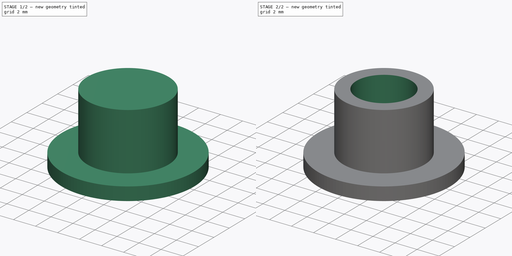
[diagram: build sequence overview — one tinted view per stage of 2, left to right]
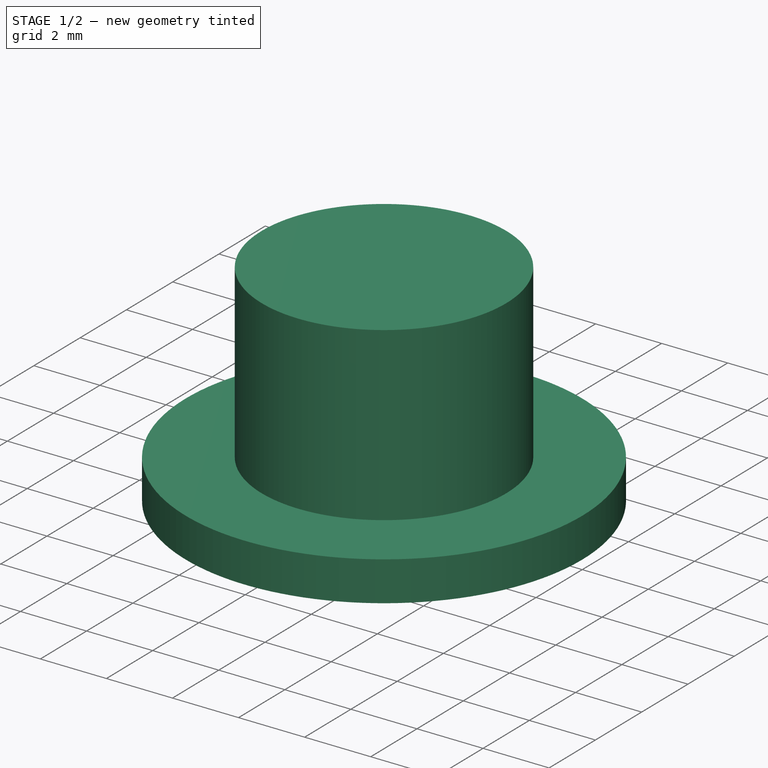
[diagram: stage 1 of 2 — iso view after this stage's code; geometry added in this stage tinted green]
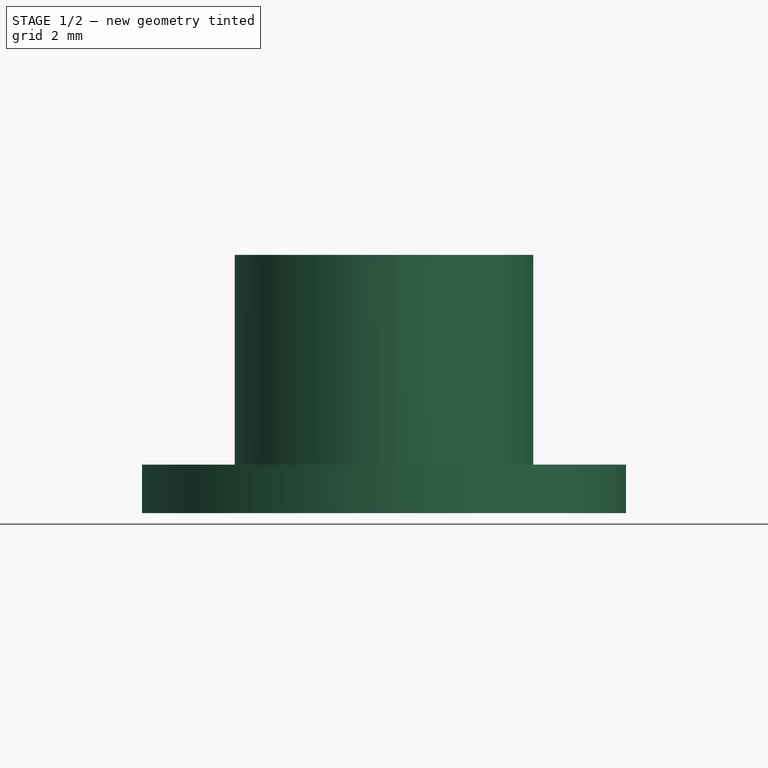
[diagram: stage 1 of 2 — front view after this stage's code; geometry added in this stage tinted green]
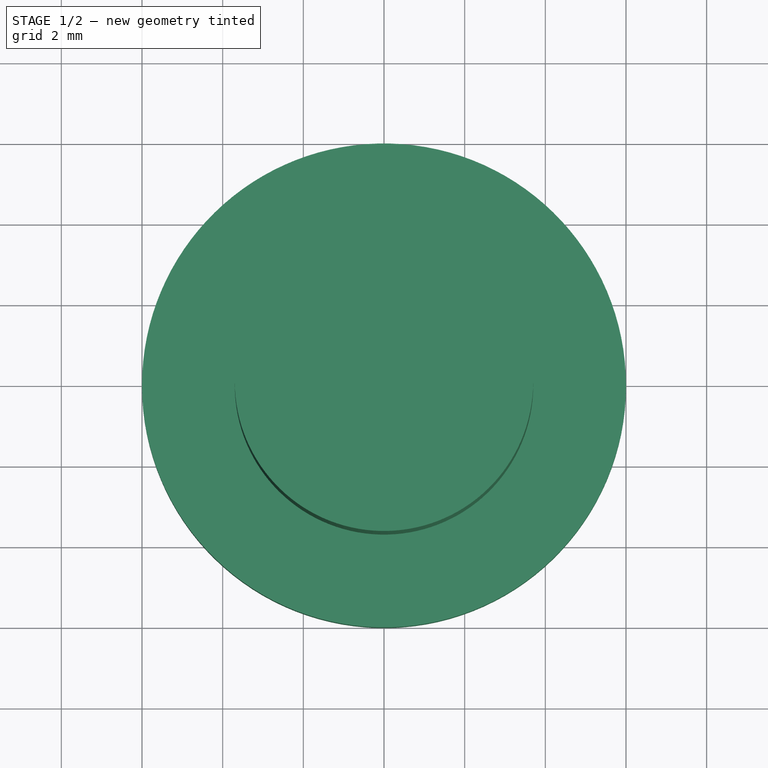
[diagram: stage 1 of 2 — top view after this stage's code; geometry added in this stage tinted green]
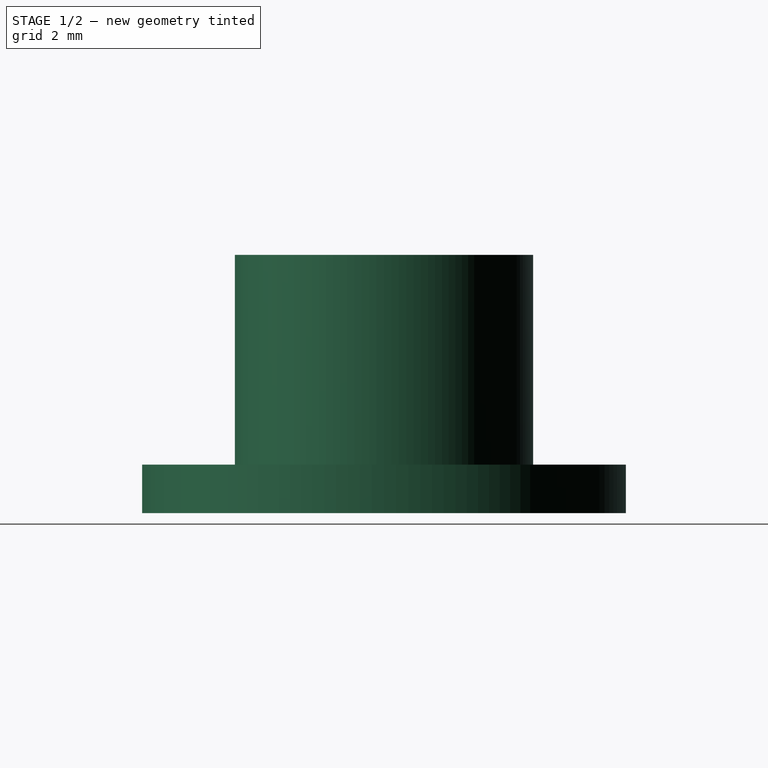
[diagram: stage 1 of 2 — right view after this stage's code; geometry added in this stage tinted green]
FCSTD DOCUMENT  (FreeCAD 0.20R29603 (Git))
Label: SG90_PaintingCap
License: All rights reserved
LicenseURL: http://en.wikipedia.org/wiki/All_rights_reserved
objects: Sketcher::SketchObject×3, PartDesign::Pad×2, PartDesign::Pocket×1, PartDesign::Body×1
note: 10 computed .brp shape members not serialized (recipe doc carries the construction recipe); baked Part::Feature solids carry a one-line shape summary decoded from their .brp

FEATURE [Sketcher::SketchObject] Sketch
  FullyConstrained = true
  MapMode = 5
  Support = -> [XY_Plane]
  sketch-geometry (1):
    g0: Circle CenterX=0 CenterY=0 CenterZ=0 NormalX=0 NormalY=0 NormalZ=1 AngleXU=0 Radius=6
  constraints (2):
    c: Coincident(g0,g-1)
    c: Diameter(g0) = 12
FEATURE [PartDesign::Pad] Pad
  Direction = (0,0,1)
  Length = 1.2
  Length2 = 10
  Profile = -> Sketch
  ReferenceAxis = -> Sketch [N_Axis]
  Type = 0
FEATURE [Sketcher::SketchObject] Sketch001
  FullyConstrained = true
  MapMode = 5
  Placement = pos=(0,0,1.2) rot=(0,0,1;0rad)
  Support = -> [Pad]
  sketch-geometry (1):
    g0: Circle CenterX=0 CenterY=0 CenterZ=0 NormalX=0 NormalY=0 NormalZ=1 AngleXU=0 Radius=3.7
  constraints (2):
    c: Coincident(g0,g-1)
    c: Diameter(g0) = 7.4
FEATURE [PartDesign::Pad] Pad001
  BaseFeature = -> Pad
  Direction = (0,0,1)
  Length = 5.2
  Length2 = 10
  Profile = -> Sketch001
  ReferenceAxis = -> Sketch001 [N_Axis]
  Type = 0
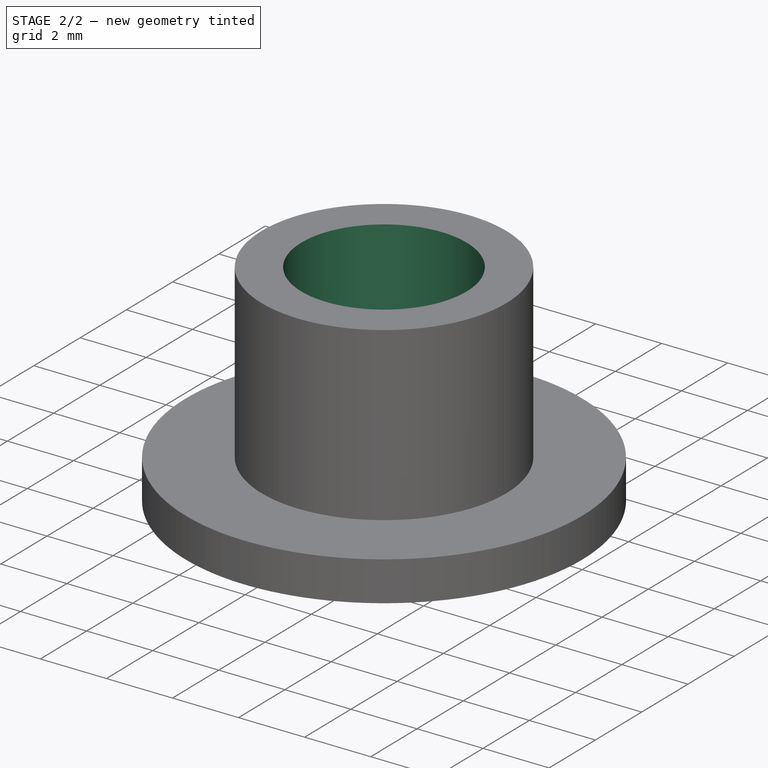
[diagram: stage 2 of 2 — iso view after this stage's code; geometry added in this stage tinted green]
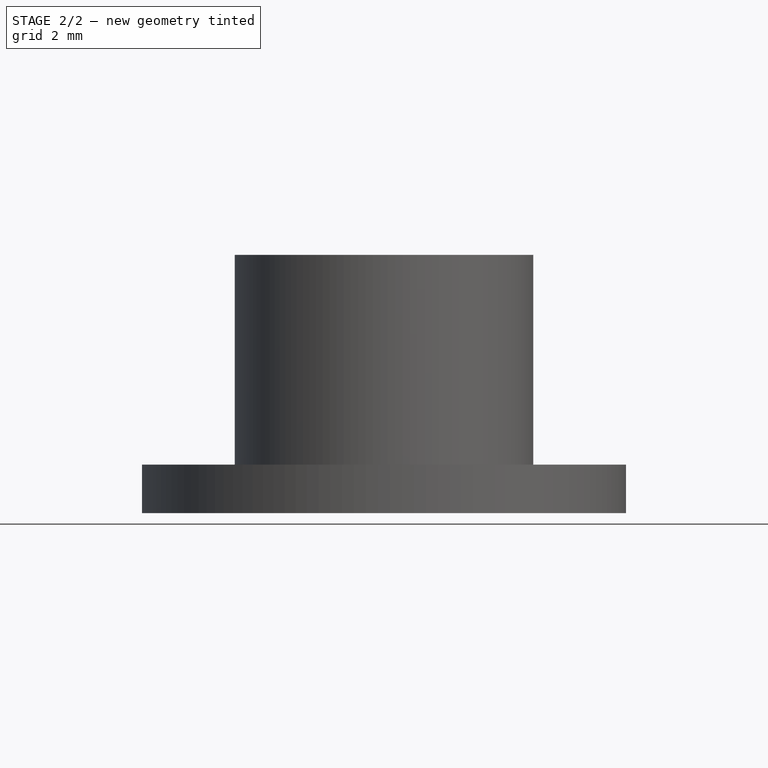
[diagram: stage 2 of 2 — front view after this stage's code; geometry added in this stage tinted green]
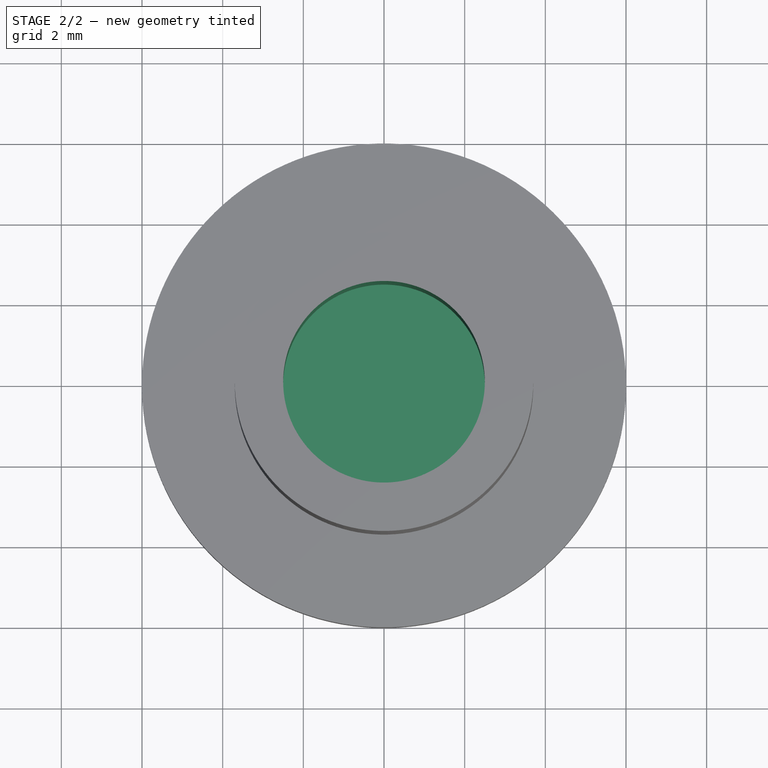
[diagram: stage 2 of 2 — top view after this stage's code; geometry added in this stage tinted green]
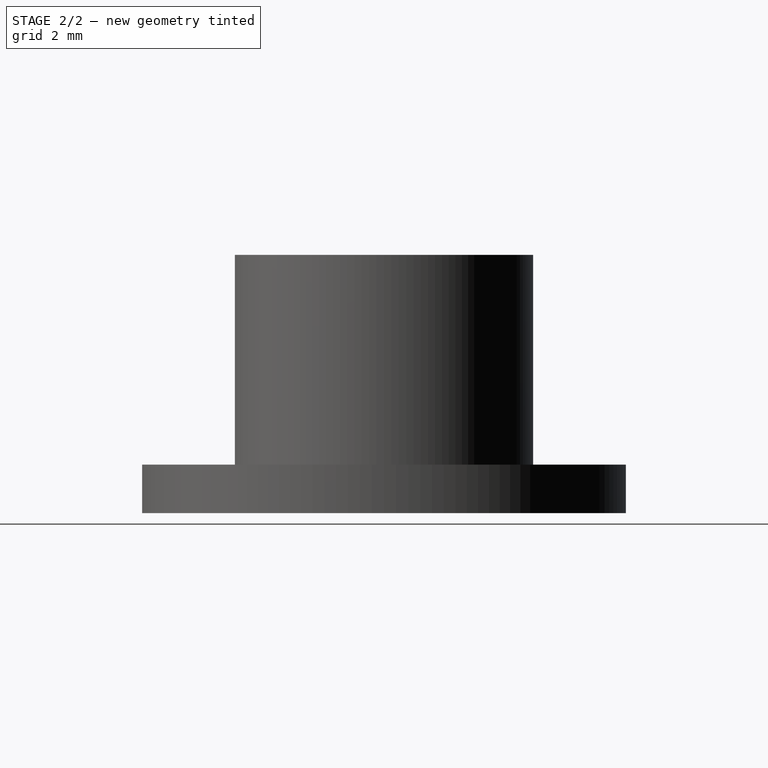
[diagram: stage 2 of 2 — right view after this stage's code; geometry added in this stage tinted green]
FEATURE [Sketcher::SketchObject] Sketch002
  FullyConstrained = true
  MapMode = 5
  Placement = pos=(0,0,6.4) rot=(0,0,1;0rad)
  Support = -> [Pad001]
  sketch-geometry (1):
    g0: Circle CenterX=0 CenterY=0 CenterZ=0 NormalX=0 NormalY=0 NormalZ=1 AngleXU=0 Radius=2.5
  constraints (2):
    c: Coincident(g0,g-1)
    c: Diameter(g0) = 5
FEATURE [PartDesign::Pocket] Pocket
  BaseFeature = -> Pad001
  Direction = (0,0,-1)
  Length = 5.2
  Length2 = 5
  Profile = -> Sketch002
  ReferenceAxis = -> Sketch002 [N_Axis]
  Type = 0
FEATURE [PartDesign::Body] Body
  Group = -> [Sketch,Pad,Sketch001,Pad001,Sketch002,Pocket]
  Origin = -> Origin
  Tip = -> Pocket
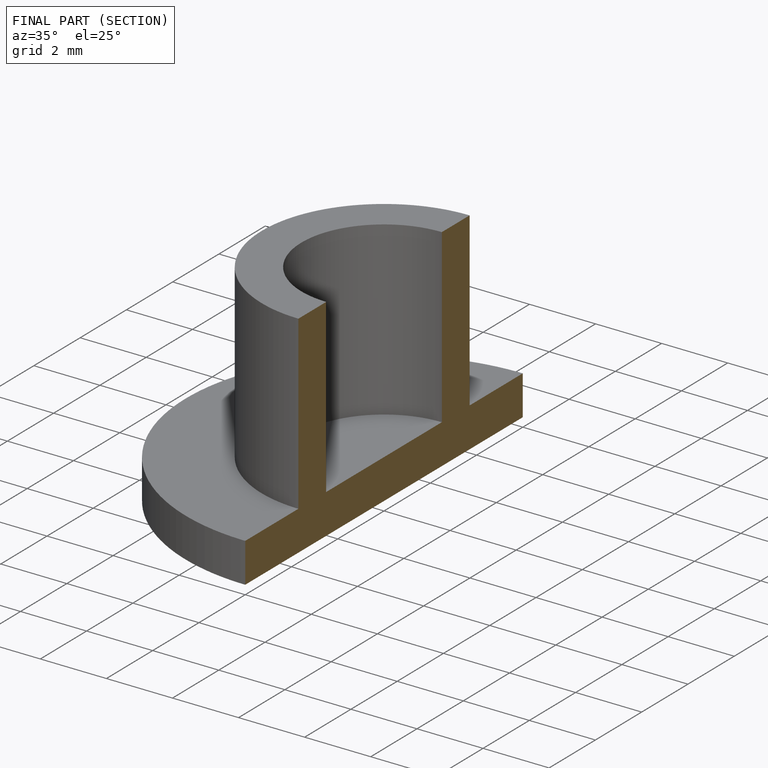
[diagram: finished part — half-section view (interior)]
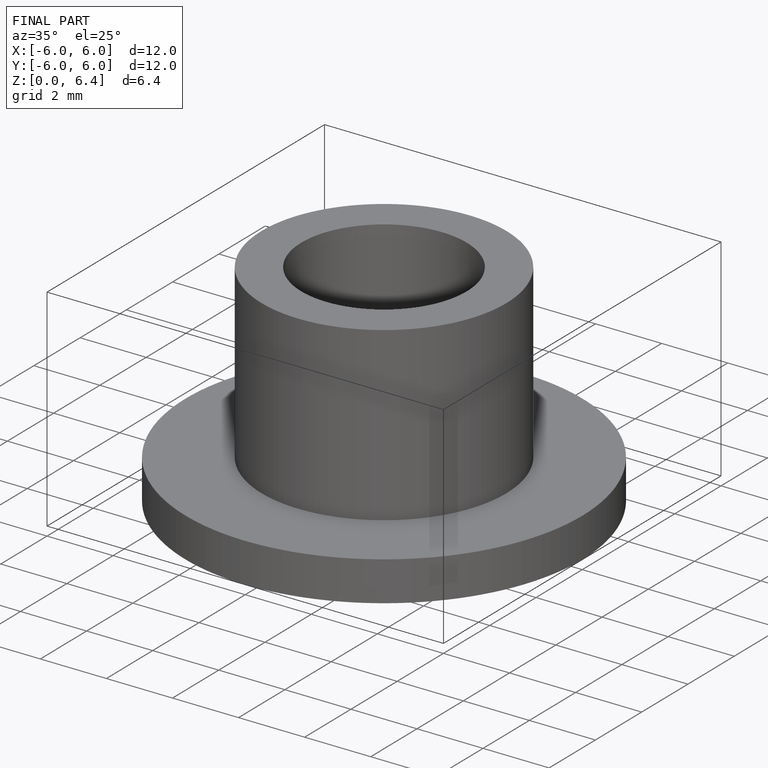
[diagram: finished part — iso view with bounding-box wireframe]
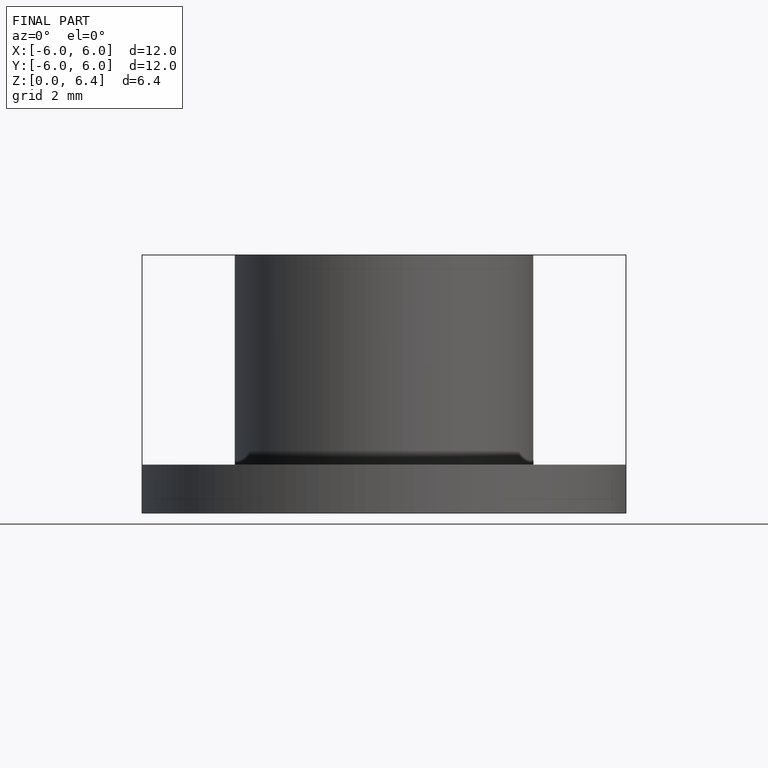
[diagram: finished part — front view with bounding-box wireframe]
